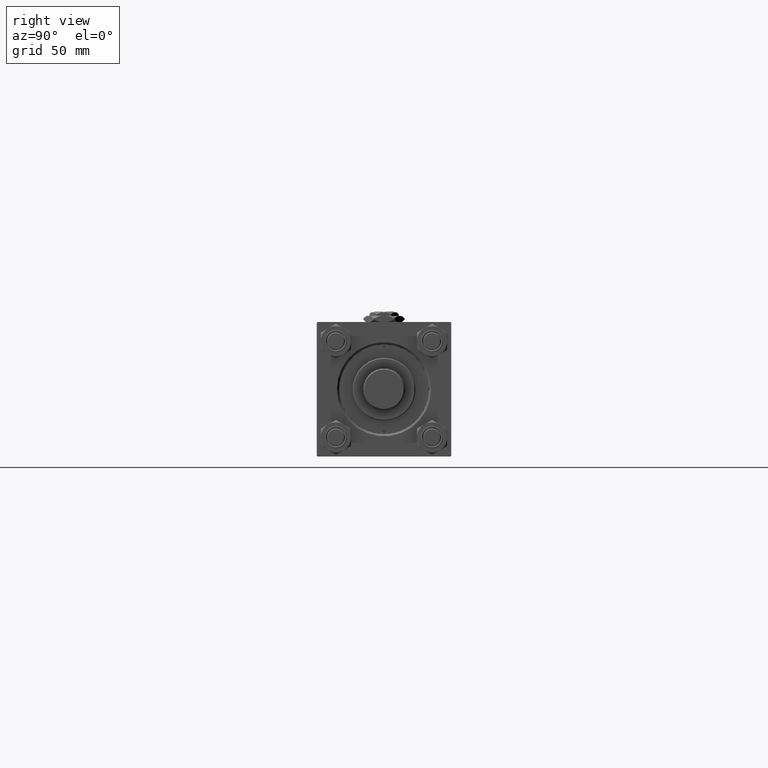
[diagram: clean part render]
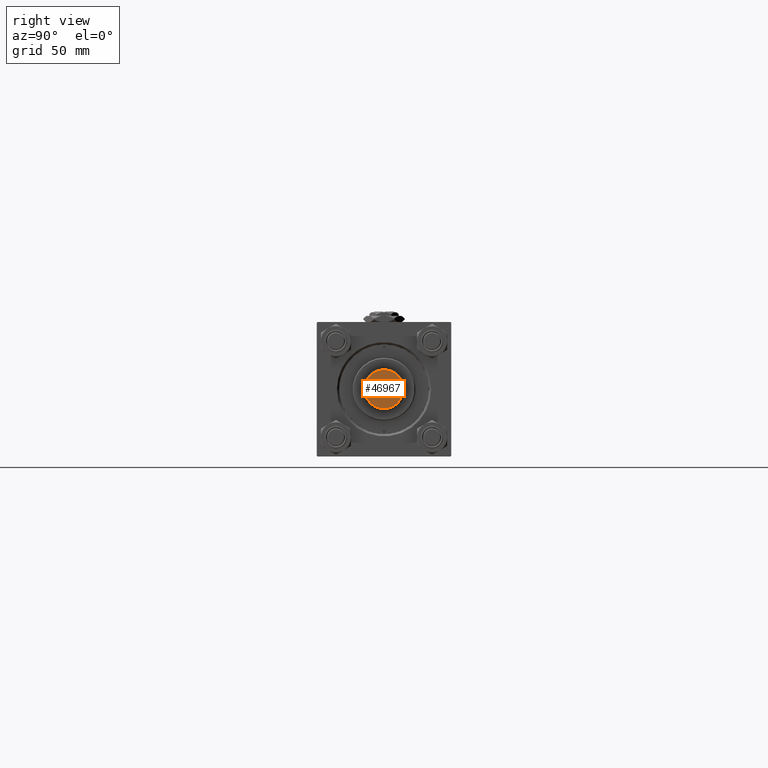
[diagram: same view with one face highlighted and labeled with its STEP entity id]
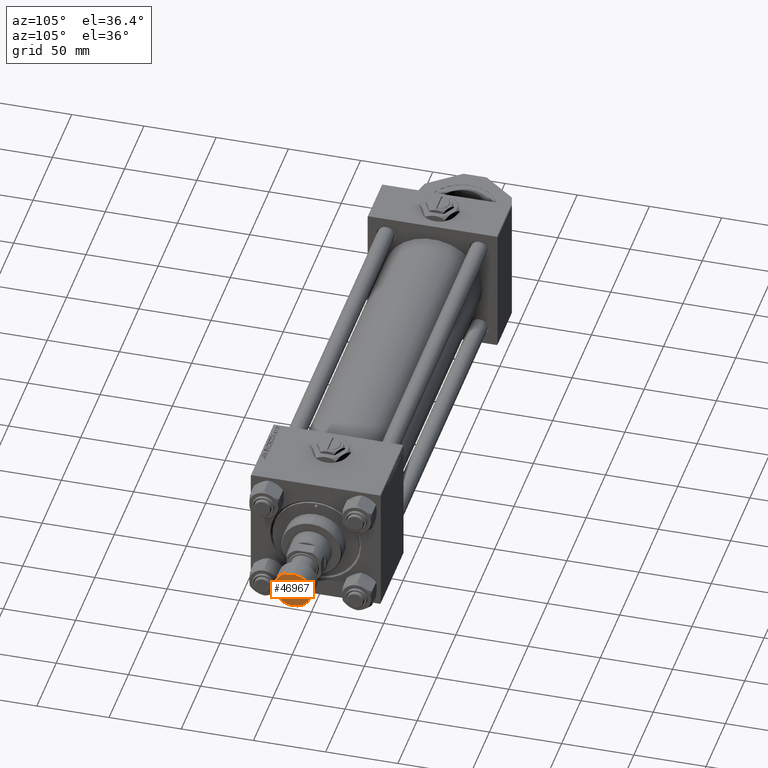
[diagram: same view with one face highlighted and labeled with its STEP entity id]
A machine part, right view. The second image highlights one B-rep face of the part: STEP entity #46967.
A second angle (auxiliary view) of the same face is appended — the face is thin or edge-on in the first view.
In plain terms, the highlighted planar face has unit normal (1, 0, 0).
Its self-contained STEP definition (entity closure, byte-faithful):
#145 = CIRCLE ( 'NONE', #29947, 13.00000000000000000 ) ;
#2607 = VERTEX_POINT ( 'NONE', #7225 ) ;
#4369 = CARTESIAN_POINT ( 'NONE',  ( 13.00000000000000000, 0.000000000000000000, 0.000000000000000000 ) ) ;
#7225 = CARTESIAN_POINT ( 'NONE',  ( -13.00000000000000000, 1.622657008870242882E-15, 0.000000000000000000 ) ) ;
#8698 = FACE_OUTER_BOUND ( 'NONE', #12247, .T. ) ;
#11275 = AXIS2_PLACEMENT_3D ( 'NONE', #38249, #45449, #24960 ) ;
#11278 = CARTESIAN_POINT ( 'NONE',  ( 0.000000000000000000, 0.000000000000000000, 0.000000000000000000 ) ) ;
#12247 = EDGE_LOOP ( 'NONE', ( #49439, #35741 ) ) ;
#13775 = DIRECTION ( 'NONE',  ( 0.000000000000000000, 0.000000000000000000, 1.000000000000000000 ) ) ;
#14580 = VERTEX_POINT ( 'NONE', #4369 ) ;
#15454 = EDGE_CURVE ( 'NONE', #14580, #2607, #145, .T. ) ;
#17761 = CARTESIAN_POINT ( 'NONE',  ( 0.000000000000000000, 0.000000000000000000, 0.000000000000000000 ) ) ;
#18032 = CIRCLE ( 'NONE', #38426, 13.00000000000000000 ) ;
#24960 = DIRECTION ( 'NONE',  ( 1.000000000000000000, 0.000000000000000000, -0.000000000000000000 ) ) ;
#29947 = AXIS2_PLACEMENT_3D ( 'NONE', #11278, #13775, #39746 ) ;
#34260 = DIRECTION ( 'NONE',  ( 1.000000000000000000, 0.000000000000000000, 0.000000000000000000 ) ) ;
#35741 = ORIENTED_EDGE ( 'NONE', *, *, #50643, .T. ) ;
#38249 = CARTESIAN_POINT ( 'NONE',  ( 0.000000000000000000, 0.000000000000000000, 0.000000000000000000 ) ) ;
#38426 = AXIS2_PLACEMENT_3D ( 'NONE', #17761, #42252, #34260 ) ;
#39746 = DIRECTION ( 'NONE',  ( 1.000000000000000000, 0.000000000000000000, 0.000000000000000000 ) ) ;
#42252 = DIRECTION ( 'NONE',  ( 0.000000000000000000, 0.000000000000000000, 1.000000000000000000 ) ) ;
#42256 = PLANE ( 'NONE',  #11275 ) ;
#45449 = DIRECTION ( 'NONE',  ( 0.000000000000000000, 0.000000000000000000, 1.000000000000000000 ) ) ;
#46967 = ADVANCED_FACE ( 'NONE', ( #8698 ), #42256, .T. ) ;
#49439 = ORIENTED_EDGE ( 'NONE', *, *, #15454, .T. ) ;
#50643 = EDGE_CURVE ( 'NONE', #2607, #14580, #18032, .T. ) ;